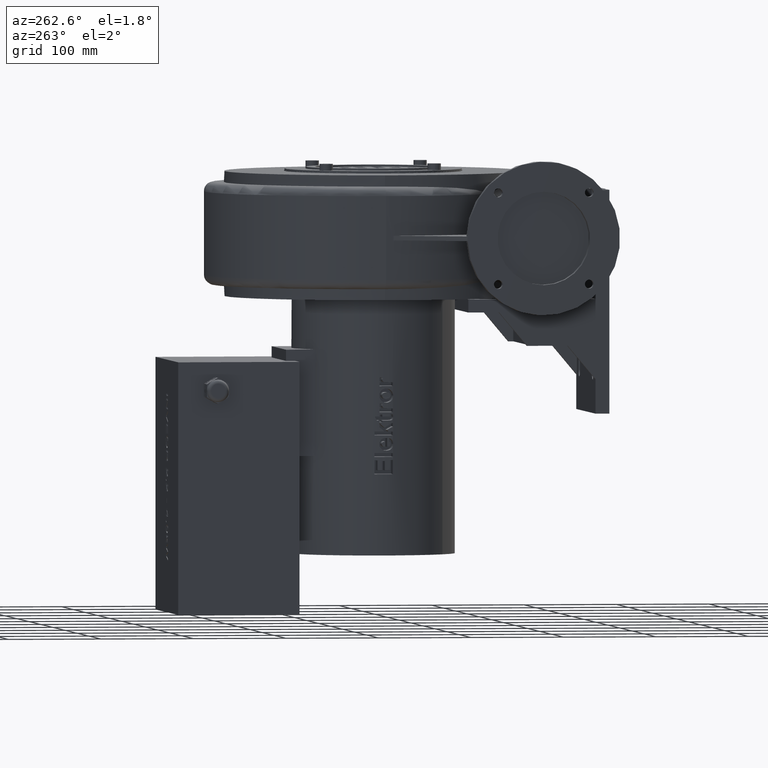
[diagram: clean part render]
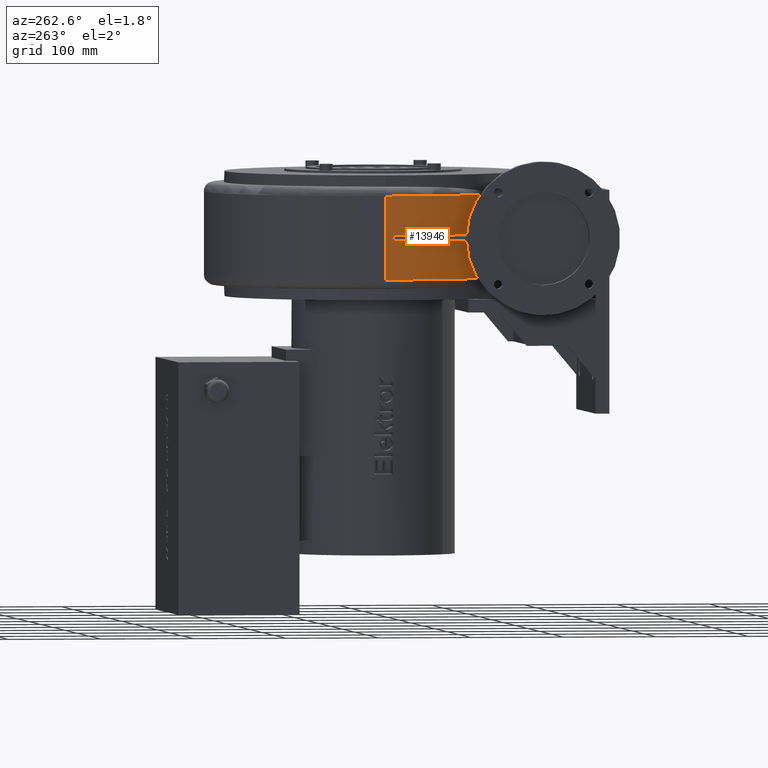
[diagram: same view with one face highlighted and labeled with its STEP entity id]
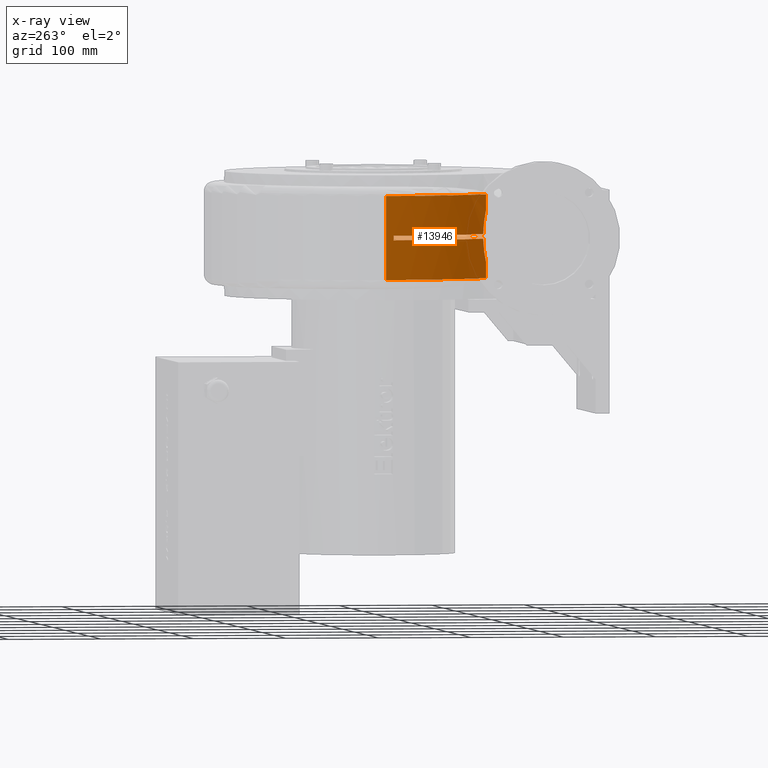
[diagram: x-ray of the same camera — body ghosted, the highlighted face saturated]
A machine part, auxiliary view. The second image highlights one B-rep face of the part: STEP entity #13946.
The next image is the same camera in x-ray: the body ghosted, the highlighted face saturated — about 0% of this face is hidden behind the body in this view.
In plain terms, the highlighted cylindrical surface (partial cylindrical patch) has radius 157 mm, axis along (-0, -0, 1).
Its self-contained STEP definition (entity closure, byte-faithful):
#72=CYLINDRICAL_SURFACE('',#14736,157.);
#204=CIRCLE('',#14737,157.);
#205=CIRCLE('',#14738,157.);
#206=CIRCLE('',#14739,157.);
#207=CIRCLE('',#14740,157.);
#652=B_SPLINE_CURVE_WITH_KNOTS('',3,(#21124,#21125,#21126,#21127,#21128,
#21129,#21130),.UNSPECIFIED.,.F.,.F.,(4,3,4),(1.73665425286889,3.24481806538937,
3.96191181136133),.UNSPECIFIED.);
#653=B_SPLINE_CURVE_WITH_KNOTS('',3,(#21138,#21139,#21140,#21141,#21142,
#21143,#21144),.UNSPECIFIED.,.F.,.F.,(4,3,4),(4.37689549759745,5.56280521589431,
6.54836443417882),.UNSPECIFIED.);
#1322=FACE_OUTER_BOUND('',#2123,.T.);
#2123=EDGE_LOOP('',(#10238,#10239,#10240,#10241,#10242,#10243,#10244,#10245,
#10246,#10247));
#3293=LINE('',#21118,#4626);
#3294=LINE('',#21122,#4627);
#3295=LINE('',#21134,#4628);
#3296=LINE('',#21145,#4629);
#4626=VECTOR('',#16492,90.);
#4627=VECTOR('',#16495,16.7665138119953);
#4628=VECTOR('',#16498,5.);
#4629=VECTOR('',#16501,16.7654712109693);
#5985=VERTEX_POINT('',#21114);
#5986=VERTEX_POINT('',#21115);
#5987=VERTEX_POINT('',#21117);
#5988=VERTEX_POINT('',#21119);
#5989=VERTEX_POINT('',#21121);
#5990=VERTEX_POINT('',#21123);
#5991=VERTEX_POINT('',#21131);
#5992=VERTEX_POINT('',#21133);
#5993=VERTEX_POINT('',#21135);
#5994=VERTEX_POINT('',#21137);
#7575=EDGE_CURVE('',#5985,#5986,#204,.T.);
#7576=EDGE_CURVE('',#5987,#5985,#3293,.T.);
#7577=EDGE_CURVE('',#5988,#5987,#205,.T.);
#7578=EDGE_CURVE('',#5988,#5989,#3294,.T.);
#7579=EDGE_CURVE('',#5989,#5990,#652,.T.);
#7580=EDGE_CURVE('',#5990,#5991,#206,.T.);
#7581=EDGE_CURVE('',#5991,#5992,#3295,.T.);
#7582=EDGE_CURVE('',#5992,#5993,#207,.T.);
#7583=EDGE_CURVE('',#5993,#5994,#653,.T.);
#7584=EDGE_CURVE('',#5994,#5986,#3296,.T.);
#10238=ORIENTED_EDGE('',*,*,#7575,.F.);
#10239=ORIENTED_EDGE('',*,*,#7576,.F.);
#10240=ORIENTED_EDGE('',*,*,#7577,.F.);
#10241=ORIENTED_EDGE('',*,*,#7578,.T.);
#10242=ORIENTED_EDGE('',*,*,#7579,.T.);
#10243=ORIENTED_EDGE('',*,*,#7580,.T.);
#10244=ORIENTED_EDGE('',*,*,#7581,.T.);
#10245=ORIENTED_EDGE('',*,*,#7582,.T.);
#10246=ORIENTED_EDGE('',*,*,#7583,.T.);
#10247=ORIENTED_EDGE('',*,*,#7584,.T.);
#13946=ADVANCED_FACE('',(#1322),#72,.T.);
#14736=AXIS2_PLACEMENT_3D('',#21113,#16488,#16489);
#14737=AXIS2_PLACEMENT_3D('',#21116,#16490,#16491);
#14738=AXIS2_PLACEMENT_3D('',#21120,#16493,#16494);
#14739=AXIS2_PLACEMENT_3D('',#21132,#16496,#16497);
#14740=AXIS2_PLACEMENT_3D('',#21136,#16499,#16500);
#16488=DIRECTION('center_axis',(-1.22464679914736E-16,-1.29953312800048E-15,
1.));
#16489=DIRECTION('ref_axis',(-1.,-1.41429684665625E-16,-1.22464679914736E-16));
#16490=DIRECTION('center_axis',(-1.22464679914736E-16,-1.29953312800048E-15,
1.));
#16491=DIRECTION('ref_axis',(-0.707106781186547,-0.707106781186548,-1.00550429280925E-15));
#16492=DIRECTION('',(-1.22464679914736E-16,-1.29953312800048E-15,1.));
#16493=DIRECTION('center_axis',(1.22464679914736E-16,1.29953312800048E-15,
-1.));
#16494=DIRECTION('ref_axis',(-0.707106781186547,-0.707106781186548,-1.00550429280925E-15));
#16495=DIRECTION('',(-1.22464679914736E-16,-1.29953312800048E-15,1.));
#16496=DIRECTION('center_axis',(1.22464679914736E-16,1.29953312800048E-15,
-1.));
#16497=DIRECTION('ref_axis',(-1.,-1.41429684665625E-16,-1.22464679914736E-16));
#16498=DIRECTION('',(-1.22464679914736E-16,-1.29953312800048E-15,1.));
#16499=DIRECTION('center_axis',(-1.22464679914736E-16,-1.29953312800048E-15,
1.));
#16500=DIRECTION('ref_axis',(-1.,-1.41429684665625E-16,-1.22464679914736E-16));
#16501=DIRECTION('',(-1.22464679914736E-16,-1.29953312800048E-15,1.));
#21113=CARTESIAN_POINT('Origin',(12.4358485344729,145.787887173537,69.9957150938644));
#21114=CARTESIAN_POINT('',(-144.564151465527,145.787887173537,114.995715093864));
#21115=CARTESIAN_POINT('',(-94.9046289802166,31.2146709015026,114.995715093864));
#21116=CARTESIAN_POINT('Origin',(12.4358485344729,145.787887173537,114.995715093864));
#21117=CARTESIAN_POINT('',(-144.564151465527,145.787887173537,24.9957150938644));
#21118=CARTESIAN_POINT('',(-144.564151465527,145.787887173537,69.9957150938644));
#21119=CARTESIAN_POINT('',(-94.9046289802166,31.2146709015027,24.9957150938643));
#21120=CARTESIAN_POINT('Origin',(12.4358485344729,145.787887173537,24.9957150938644));
#21121=CARTESIAN_POINT('',(-94.9046289779388,31.2146708991702,41.7622289058596));
#21122=CARTESIAN_POINT('',(-94.9046289802166,31.2146709015026,69.9957150938643));
#21123=CARTESIAN_POINT('',(-98.567030694868,34.7592386057177,67.4957150938643));
#21124=CARTESIAN_POINT('Ctrl Pts',(-94.9046289778315,31.2146708992681,41.7622289058637));
#21125=CARTESIAN_POINT('Ctrl Pts',(-96.3024748093651,32.5242739978336,47.0638756043678));
#21126=CARTESIAN_POINT('Ctrl Pts',(-97.3980509127058,33.5992757457564,52.7509246640226));
#21127=CARTESIAN_POINT('Ctrl Pts',(-98.0216400262332,34.2166398879508,58.8134468156056));
#21128=CARTESIAN_POINT('Ctrl Pts',(-98.3181408769063,34.510180922207,61.696022755716));
#21129=CARTESIAN_POINT('Ctrl Pts',(-98.5009115898696,34.693134846719,64.610434550561));
#21130=CARTESIAN_POINT('Ctrl Pts',(-98.5670306948679,34.7592386057177,67.4957150938643));
#21131=CARTESIAN_POINT('',(-144.359972998881,137.783491526112,67.4957150938644));
#21132=CARTESIAN_POINT('Origin',(12.4358485344729,145.787887173537,67.4957150938644));
#21133=CARTESIAN_POINT('',(-144.359972998881,137.783491526112,72.4957150938644));
#21134=CARTESIAN_POINT('',(-144.359972998881,137.783491526112,69.9957150938644));
#21135=CARTESIAN_POINT('',(-98.567053410775,34.7592613163572,72.4957150938643));
#21136=CARTESIAN_POINT('Origin',(12.4358485344729,145.787887173537,72.4957150938644));
#21137=CARTESIAN_POINT('',(-94.9046289802164,31.2146709015023,98.230243882895));
#21138=CARTESIAN_POINT('Ctrl Pts',(-98.567053410775,34.7592613163572,72.4957150938642));
#21139=CARTESIAN_POINT('Ctrl Pts',(-98.4581401809022,34.6503733202862,77.2503170093167));
#21140=CARTESIAN_POINT('Ctrl Pts',(-98.0400557619673,34.2302241397855,81.9824540208917));
#21141=CARTESIAN_POINT('Ctrl Pts',(-97.3116382210472,33.5181710839036,86.7024255850568));
#21142=CARTESIAN_POINT('Ctrl Pts',(-96.7062813282434,32.9264140198499,90.6249935624779));
#21143=CARTESIAN_POINT('Ctrl Pts',(-95.8927721752874,32.140434931378,94.4824733629922));
#21144=CARTESIAN_POINT('Ctrl Pts',(-94.9046289802164,31.2146709015023,98.230243882895));
#21145=CARTESIAN_POINT('',(-94.9046289802166,31.2146709015026,69.9957150938643));